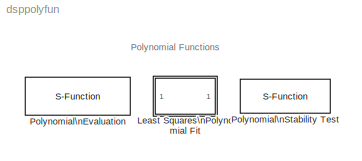
MODEL dsppolyfun
KIND library
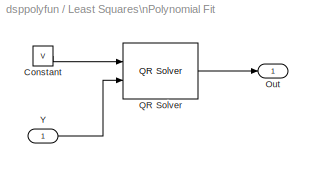
BLOCK [SubSystem] Least Squares\nPolynomial Fit
  MaskCallbackString = |
  MaskDescription = Find the coefficients of a polynomial P(X) of order N that fits the input data U, such that P(X) best approximates U in a least-squares sense.  The input vector U must have the same length as X.
  MaskDisplay = disp('Polyfit')\n
  MaskEnableString = on,on
  MaskHelp = web(dspbhelp);\n
  MaskIconFrame = on
  MaskIconOpaque = on
  MaskIconRotate = none
  MaskIconUnits = autoscale
  MaskInitialization = % construct Vandermonde matrix\nX=X(:); V(:,N+1) = ones(length(X),1); V(:,N) = X;\nfor j = N-1:-1:1, V(:,j) = X.*V(:,j+1); end\n
  MaskPromptString = Control points (X):|Polynomial order (N):
  MaskStyleString = edit,edit
  MaskToolTipString = on,on
  MaskTunableValueString = on,off
  MaskType = Least Squares Polynomial Fit
  MaskValueString = (0:31) / 31|3
  MaskVarAliasString = ,
  MaskVariables = X=@1;N=@2;
  MaskVisibilityString = on,on
  Ports = [1, 1]
  TreatAsAtomicUnit = off
BLOCK [Constant] Least Squares\nPolynomial Fit/Constant
  OutDataTypeMode = Inherit via back propagation
  Value = V
BLOCK [Outport] Least Squares\nPolynomial Fit/Out
BLOCK [Reference] Least Squares\nPolynomial Fit/QR Solver  REF=dspsolvers/QR Solver
  Ports = [2, 1]
  SourceBlock = dspsolvers/QR Solver
  SourceType = QR Solver
BLOCK [Inport] Least Squares\nPolynomial Fit/Y
BLOCK [S-Function] Polynomial\nEvaluation
  FunctionName = sdsppolyval2
  MaskCallbackString = dspblkpolyval|
  MaskDescription = Apply specified polynomial function to input.\n\nExample: [1 3 5] represents u^2 + 3u + 5.
  MaskDisplay = port_label(p.in1,   p.i1,  p.i1s);\nport_label(p.in2,   p.i2,  p.i2s);\nport_label(p.out, p.o1, p.o1s);\ndisp('Polyval')
  MaskEnableString = on,off
  MaskHelp = web(dspbhelp);
  MaskIconFrame = on
  MaskIconOpaque = on
  MaskIconRotate = none
  MaskIconUnits = autoscale
  MaskInitialization = [p,xy] = dspblkpolyval('icon');
  MaskPromptString = Use constant coefficients|Constant coefficients:
  MaskSelfModifiable = on
  MaskStyleString = checkbox,edit
  MaskToolTipString = on,on
  MaskTunableValueString = off,off
  MaskType = Polynomial Evaluation
  MaskValueString = off|[5 4 3 2 1]
  MaskVarAliasString = ,
  MaskVariables = useConstCoeffs=@1;constCoeffs=@2;
  MaskVisibilityString = on,on
  Parameters = constCoeffs,useConstCoeffs
  Ports = [2, 1]
BLOCK [S-Function] Polynomial\nStability Test
  FunctionName = sdspsctest
  MaskDescription = Determines if all roots of the input polynomial lie inside the unit circle.  Implemented using the Schur-Cohn algorithm.
  MaskDisplay = disp('|roots(u)| < 1')
  MaskHelp = web(dspbhelp);\n
  MaskIconFrame = on
  MaskIconOpaque = on
  MaskIconRotate = none
  MaskIconUnits = autoscale
  MaskType = Polynomial Stability Test
  Ports = [1, 1]
ANNOTATION (root): Polynomial Functions
LINE Least Squares\nPolynomial Fit/Constant:1 -> Least Squares\nPolynomial Fit/QR Solver:1
LINE Least Squares\nPolynomial Fit/QR Solver:1 -> Least Squares\nPolynomial Fit/Out:1
LINE Least Squares\nPolynomial Fit/Y:1 -> Least Squares\nPolynomial Fit/QR Solver:2
